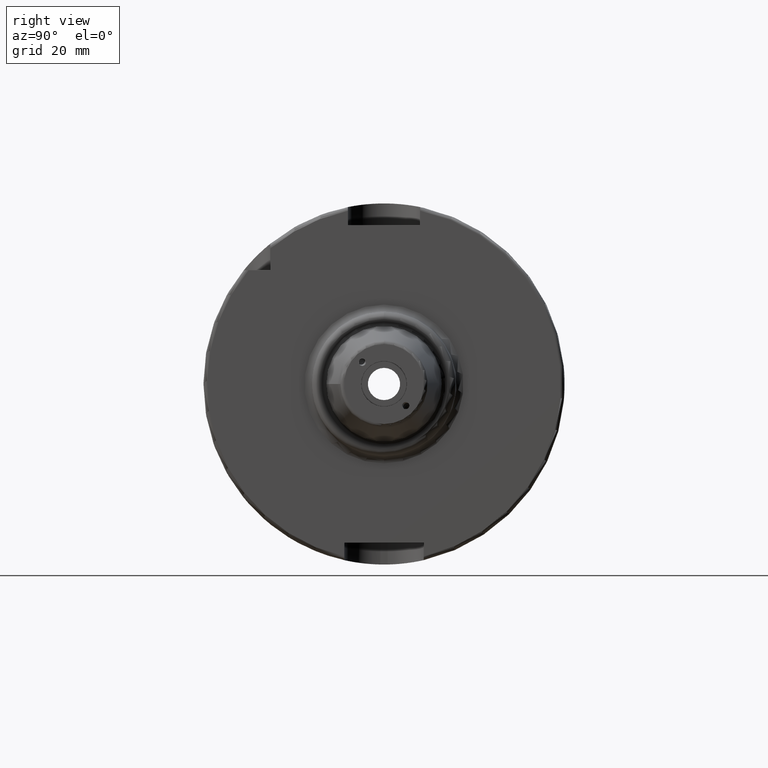
[diagram: clean part render]
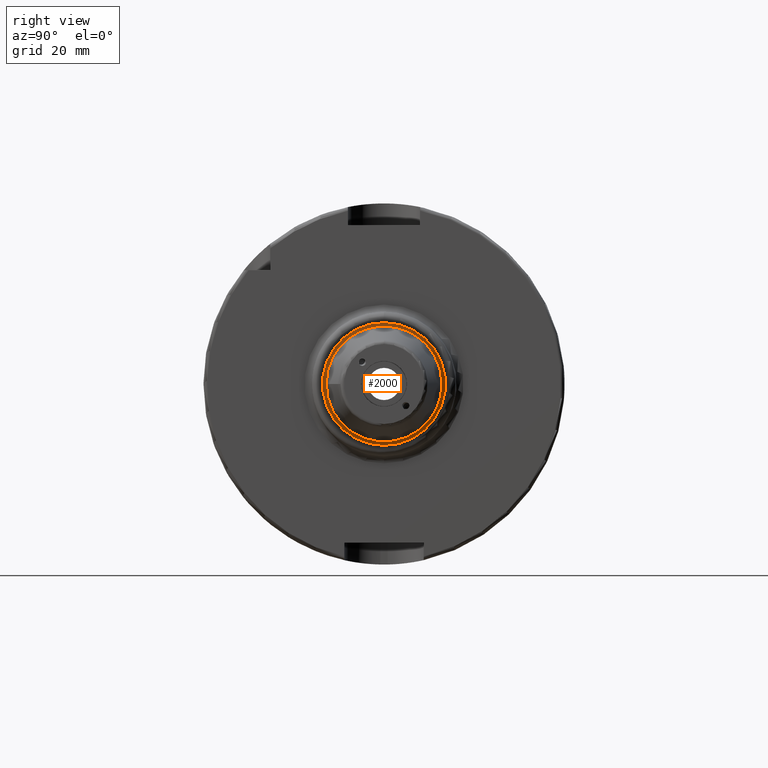
[diagram: same view with one face highlighted and labeled with its STEP entity id]
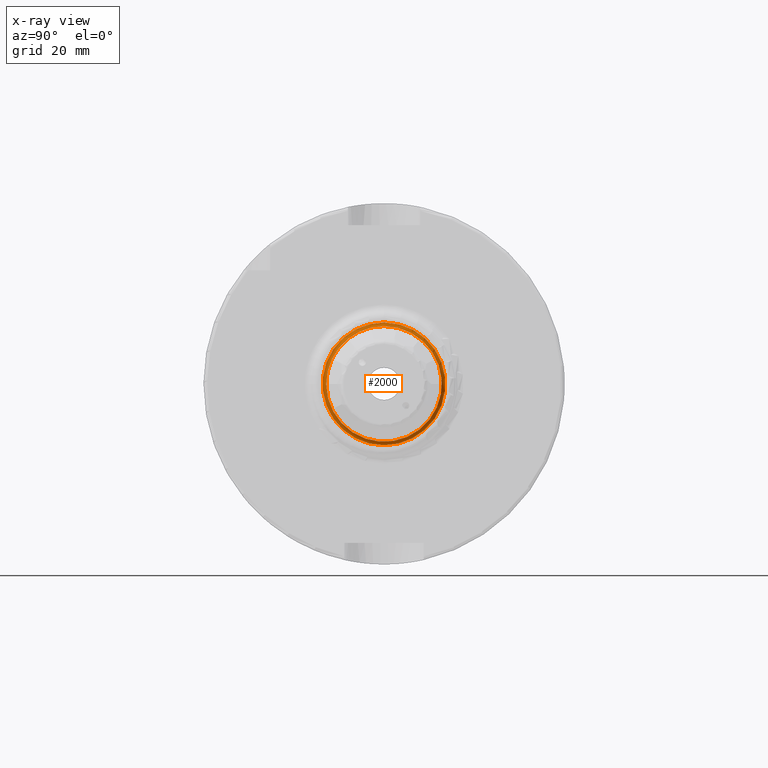
[diagram: x-ray of the same camera — body ghosted, the highlighted face saturated]
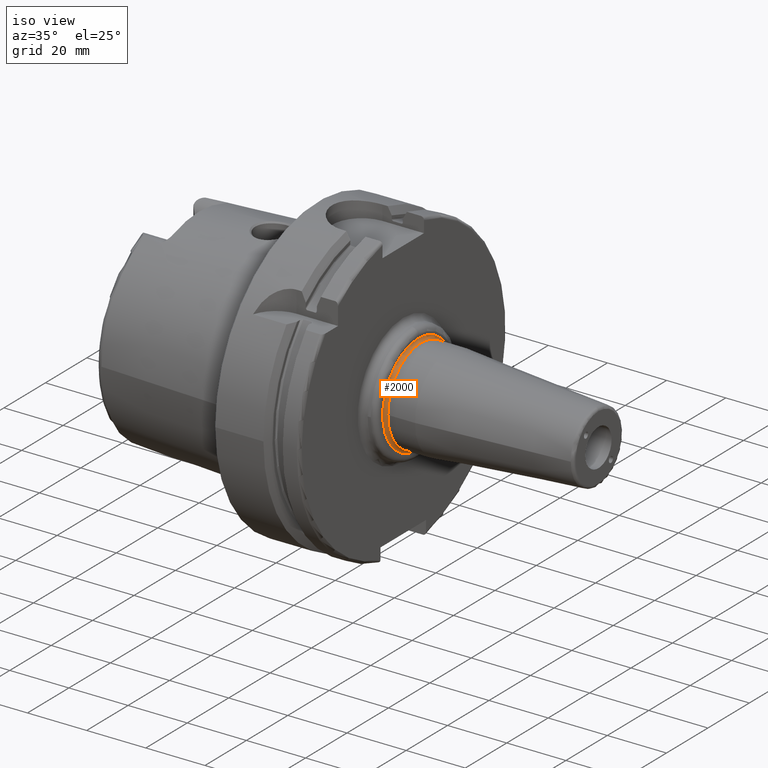
[diagram: same view with one face highlighted and labeled with its STEP entity id]
A machine part, right view. The second image highlights one B-rep face of the part: STEP entity #2000.
The next image is the same camera in x-ray: the body ghosted, the highlighted face saturated — about 0% of this face is hidden behind the body in this view.
A second angle (iso view) of the same face is appended — the face is thin or edge-on in the first view.
In plain terms, the highlighted toroidal blend (fillet) surface has major radius 17 mm and minor (blend) radius 1 mm.
Its self-contained STEP definition (entity closure, byte-faithful):
#138=TOROIDAL_SURFACE('',#2148,17.,1.);
#216=FACE_OUTER_BOUND('',#337,.T.);
#337=EDGE_LOOP('',(#1356,#1357,#1358,#1359,#1360));
#682=CIRCLE('',#2149,17.);
#683=CIRCLE('',#2150,1.);
#684=CIRCLE('',#2151,16.);
#685=CIRCLE('',#2152,16.);
#821=VERTEX_POINT('',#3060);
#822=VERTEX_POINT('',#3062);
#823=VERTEX_POINT('',#3064);
#1031=EDGE_CURVE('',#821,#821,#682,.T.);
#1032=EDGE_CURVE('',#821,#822,#683,.T.);
#1033=EDGE_CURVE('',#822,#823,#684,.T.);
#1034=EDGE_CURVE('',#823,#822,#685,.T.);
#1356=ORIENTED_EDGE('',*,*,#1031,.T.);
#1357=ORIENTED_EDGE('',*,*,#1032,.T.);
#1358=ORIENTED_EDGE('',*,*,#1033,.T.);
#1359=ORIENTED_EDGE('',*,*,#1034,.T.);
#1360=ORIENTED_EDGE('',*,*,#1032,.F.);
#2000=ADVANCED_FACE('',(#216),#138,.F.);
#2148=AXIS2_PLACEMENT_3D('',#3059,#2426,#2427);
#2149=AXIS2_PLACEMENT_3D('',#3061,#2428,#2429);
#2150=AXIS2_PLACEMENT_3D('',#3063,#2430,#2431);
#2151=AXIS2_PLACEMENT_3D('',#3065,#2432,#2433);
#2152=AXIS2_PLACEMENT_3D('',#3066,#2434,#2435);
#2426=DIRECTION('center_axis',(1.,0.,0.));
#2427=DIRECTION('ref_axis',(0.,0.,-1.));
#2428=DIRECTION('center_axis',(1.,0.,0.));
#2429=DIRECTION('ref_axis',(0.,-1.,1.83697019872103E-16));
#2430=DIRECTION('center_axis',(0.,-1.,-1.22464679914735E-16));
#2431=DIRECTION('ref_axis',(0.,-1.22464679914735E-16,1.));
#2432=DIRECTION('center_axis',(-1.,0.,0.));
#2433=DIRECTION('ref_axis',(0.,-1.,1.83697019872103E-16));
#2434=DIRECTION('center_axis',(-1.,0.,0.));
#2435=DIRECTION('ref_axis',(0.,-1.,1.83697019872103E-16));
#3059=CARTESIAN_POINT('Origin',(35.,0.,0.));
#3060=CARTESIAN_POINT('',(34.,-2.0818995585505E-15,17.));
#3061=CARTESIAN_POINT('Origin',(34.,0.,0.));
#3062=CARTESIAN_POINT('',(35.,-1.95943487863576E-15,16.));
#3063=CARTESIAN_POINT('Origin',(35.,-2.0818995585505E-15,17.));
#3064=CARTESIAN_POINT('',(35.,-16.,-1.95943487863576E-15));
#3065=CARTESIAN_POINT('Origin',(35.,0.,0.));
#3066=CARTESIAN_POINT('Origin',(35.,0.,0.));